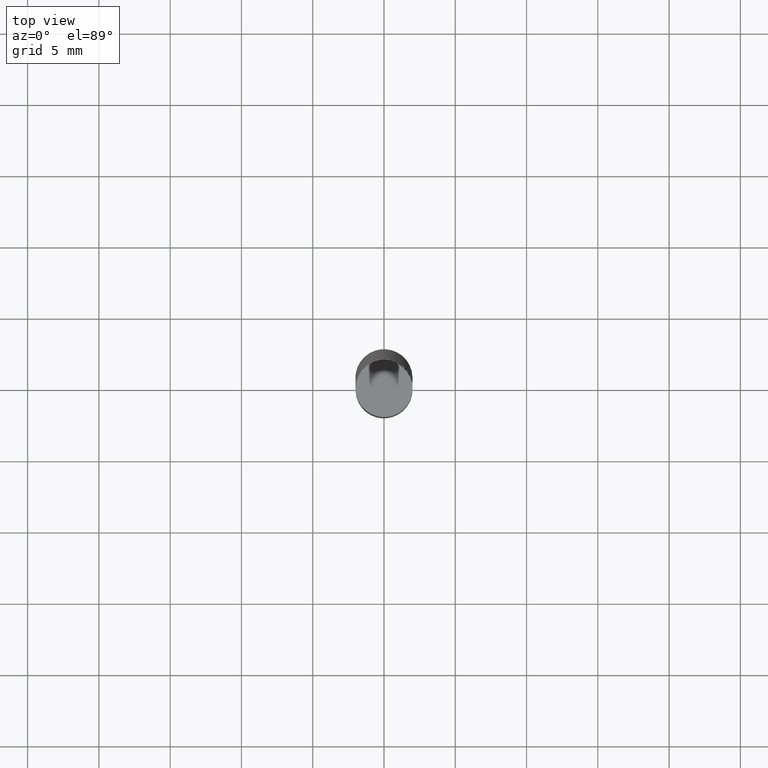
[diagram: clean part render]
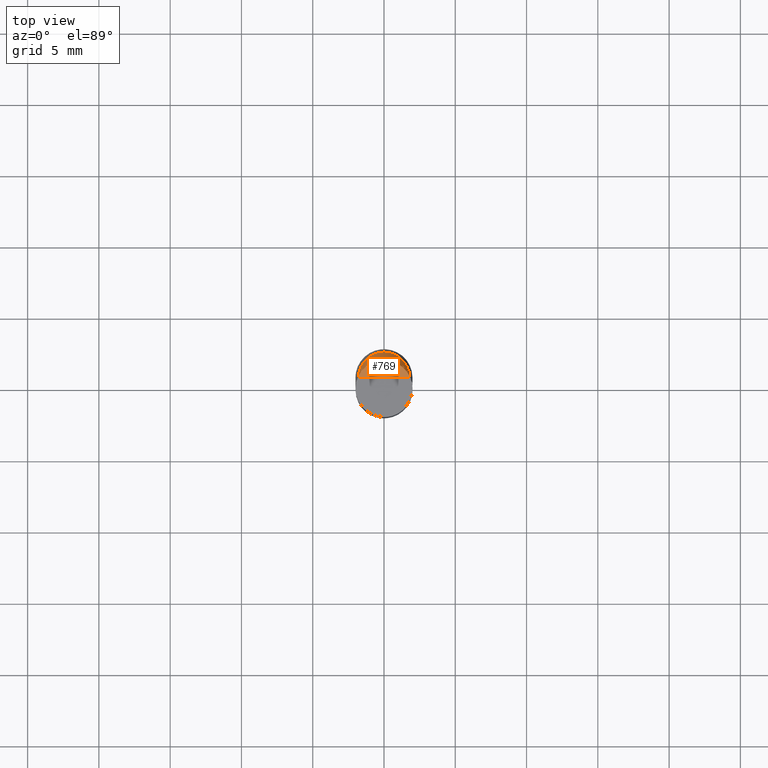
[diagram: same view with one face highlighted and labeled with its STEP entity id]
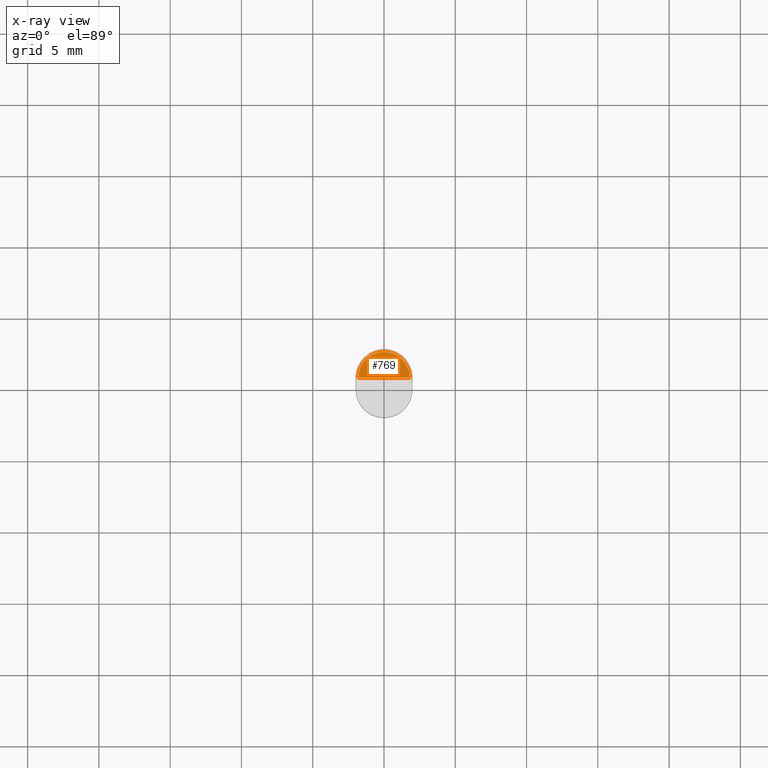
[diagram: x-ray of the same camera — body ghosted, the highlighted face saturated]
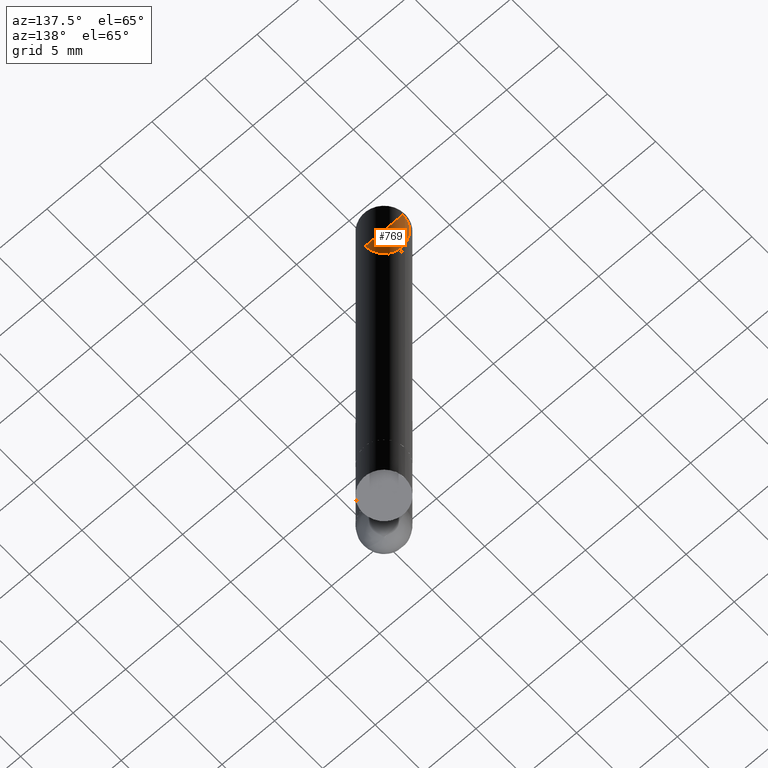
[diagram: same view with one face highlighted and labeled with its STEP entity id]
A machine part, top view. The second image highlights one B-rep face of the part: STEP entity #769.
The next image is the same camera in x-ray: the body ghosted, the highlighted face saturated — about 0% of this face is hidden behind the body in this view.
A second angle (auxiliary view) of the same face is appended — the face is thin or edge-on in the first view.
In plain terms, the highlighted face is a freeform B-spline surface patch.
Its self-contained STEP definition (entity closure, byte-faithful):
#548=CARTESIAN_POINT('',(1.8,0.0,39.0));
#549=CARTESIAN_POINT('',(1.8,1.8,39.0));
#550=CARTESIAN_POINT('',(0.0,1.8,39.0));
#551=CARTESIAN_POINT('',(-1.8,1.8,39.0));
#552=CARTESIAN_POINT('',(-1.8,0.0,39.0));
#553=CARTESIAN_POINT('',(0.0,0.0,39.0));
#754=(
BOUNDED_SURFACE()
B_SPLINE_SURFACE(1,2,(
(#548,#549,#550,#551,#552),
(#553,#553,#553,#553,#553)
), .UNSPECIFIED.,.F.,.F.,.F.)
B_SPLINE_SURFACE_WITH_KNOTS((2,2),(3,2,3),(
0.0,1.0),(
0.0,0.5,1.0), .UNSPECIFIED.)
GEOMETRIC_REPRESENTATION_ITEM()
RATIONAL_B_SPLINE_SURFACE(((1.0,0.707106781187,1.0,0.707106781187,1.0),
(1.0,0.707106781187,1.0,0.707106781187,1.0)
))
REPRESENTATION_ITEM('')
SURFACE()
);
#755=(
BOUNDED_CURVE()
B_SPLINE_CURVE(2,(#552,#551,#550,#549,#548),.UNSPECIFIED.,.F.,.F.)
B_SPLINE_CURVE_WITH_KNOTS((3,2,3),
(0.0,0.5,1.0),.UNSPECIFIED.)
CURVE()
GEOMETRIC_REPRESENTATION_ITEM()
RATIONAL_B_SPLINE_CURVE((1.0,0.707106781187,1.0,0.707106781187,1.0))
REPRESENTATION_ITEM('')
);
#756=(
BOUNDED_CURVE()
B_SPLINE_CURVE(1,(#548,#553),.UNSPECIFIED.,.F.,.F.)
B_SPLINE_CURVE_WITH_KNOTS((2,2),
(0.0,1.0),.UNSPECIFIED.)
CURVE()
GEOMETRIC_REPRESENTATION_ITEM()
RATIONAL_B_SPLINE_CURVE((1.0,1.0))
REPRESENTATION_ITEM('')
);
#757=(
BOUNDED_CURVE()
B_SPLINE_CURVE(1,(#553,#552),.UNSPECIFIED.,.F.,.F.)
B_SPLINE_CURVE_WITH_KNOTS((2,2),
(0.0,1.0),.UNSPECIFIED.)
CURVE()
GEOMETRIC_REPRESENTATION_ITEM()
RATIONAL_B_SPLINE_CURVE((1.0,1.0))
REPRESENTATION_ITEM('')
);
#758=VERTEX_POINT('',#548);
#759=VERTEX_POINT('',#552);
#760=VERTEX_POINT('',#553);
#761=EDGE_CURVE('',#759,#758,#755,.T.);
#762=EDGE_CURVE('',#758,#760,#756,.T.);
#763=EDGE_CURVE('',#760,#759,#757,.T.);
#764=ORIENTED_EDGE('',*,*,#761,.T.);
#765=ORIENTED_EDGE('',*,*,#762,.T.);
#766=ORIENTED_EDGE('',*,*,#763,.T.);
#767=EDGE_LOOP('',(#764,#765,#766));
#768=FACE_OUTER_BOUND('',#767,.T.);
#769=ADVANCED_FACE('',(#768),#754,.T.);